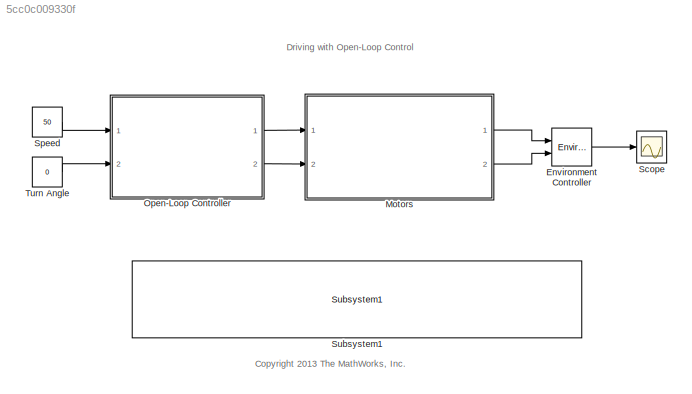
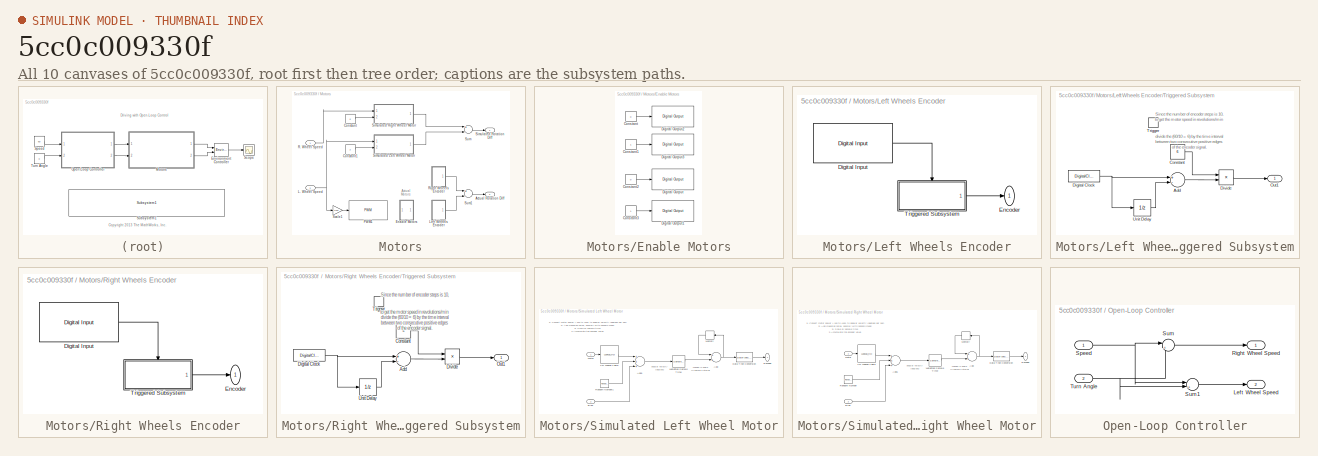
[diagram: thumbnail index - all 10 canvases of the model, root first then tree order]
MODEL slx_5cc0c009330f
KIND model
BLOCK [Reference] Environment Controller  REF=simulink/Signal
Routing/Environment
Controller
  Ports = [2, 1]
  SourceBlock = simulink/Signal\nRouting/Environment\nController
  SourceType = Environment Controller
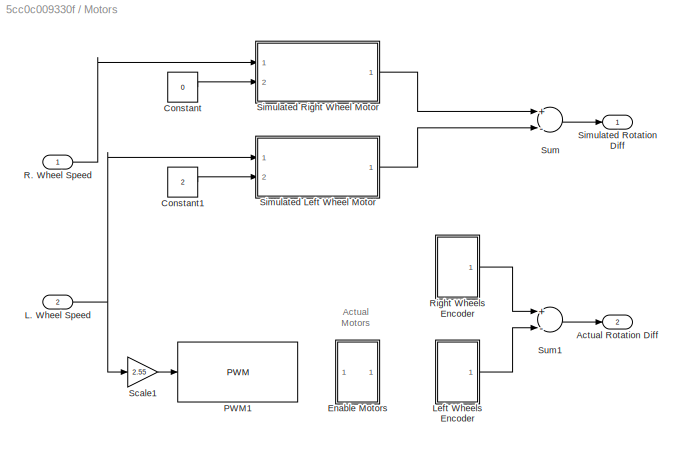
BLOCK [SubSystem] Motors
  Ports = [2, 2]
  RequestExecContextInheritance = off
  VariantControl = DoSim
BLOCK [Outport] Motors/Actual Rotation Diff
  IconDisplay = Port number
  Port = 2
BLOCK [Constant] Motors/Constant
  OutDataTypeStr = single
  Value = 0
BLOCK [Constant] Motors/Constant1
  OutDataTypeStr = single
  Value = 2
BLOCK [SubSystem] Motors/Enable Motors
  Ports = []
  RequestExecContextInheritance = off
BLOCK [Constant] Motors/Enable Motors/Constant
  OutDataTypeStr = boolean
  Value = 0
BLOCK [Constant] Motors/Enable Motors/Constant1
  OutDataTypeStr = boolean
BLOCK [Constant] Motors/Enable Motors/Constant2
  OutDataTypeStr = boolean
  Value = 0
BLOCK [Constant] Motors/Enable Motors/Constant3
  OutDataTypeStr = boolean
BLOCK [Reference] Motors/Enable Motors/Digital Output  REF=arduinolib/Digital Output
  Ports = [1]
  SourceBlock = arduinolib/Digital Output
  SourceType = Arduino Digital Output
  blockPlatform = arduino
  pinNumber = 2
BLOCK [Reference] Motors/Enable Motors/Digital Output1  REF=arduinolib/Digital Output
  Ports = [1]
  SourceBlock = arduinolib/Digital Output
  SourceType = Arduino Digital Output
  blockPlatform = arduino
  pinNumber = 3
BLOCK [Reference] Motors/Enable Motors/Digital Output2  REF=arduinolib/Digital Output
  Ports = [1]
  SourceBlock = arduinolib/Digital Output
  SourceType = Arduino Digital Output
  blockPlatform = arduino
  pinNumber = 4
BLOCK [Reference] Motors/Enable Motors/Digital Output3  REF=arduinolib/Digital Output
  Ports = [1]
  SourceBlock = arduinolib/Digital Output
  SourceType = Arduino Digital Output
  blockPlatform = arduino
  pinNumber = 5
BLOCK [Inport] Motors/L. Wheel Speed
  IconDisplay = Port number
  Port = 2
BLOCK [SubSystem] Motors/Left Wheels Encoder
  Ports = [0, 1]
  RequestExecContextInheritance = off
BLOCK [Reference] Motors/Left Wheels Encoder/Digital Input  REF=arduinolib/Digital Input
  Ports = [0, 1]
  SourceBlock = arduinolib/Digital Input
  SourceType = Arduino Digital Input
  blockPlatform = arduino
  pinNumber = 9
  sampleTime = 0.001
BLOCK [Outport] Motors/Left Wheels Encoder/Encoder
  IconDisplay = Port number
BLOCK [SubSystem] Motors/Left Wheels Encoder/Triggered Subsystem
  Ports = [0, 1, 0, 1]
  RequestExecContextInheritance = off
  TreatAsAtomicUnit = on
BLOCK [Sum] Motors/Left Wheels Encoder/Triggered Subsystem/Add
  InputSameDT = off
  Inputs = +-
  OutDataTypeStr = Inherit: Inherit via internal rule
  Ports = [2, 1]
  SaturateOnIntegerOverflow = off
BLOCK [Constant] Motors/Left Wheels Encoder/Triggered Subsystem/Constant
  Value = 6
BLOCK [DigitalClock] Motors/Left Wheels Encoder/Triggered Subsystem/Digital Clock
  SampleTime = -1
BLOCK [Product] Motors/Left Wheels Encoder/Triggered Subsystem/Divide
  InputSameDT = off
  Inputs = */
  OutDataTypeStr = int32
  Ports = [2, 1]
  RndMeth = Floor
  SaturateOnIntegerOverflow = off
BLOCK [Outport] Motors/Left Wheels Encoder/Triggered Subsystem/Out1
  IconDisplay = Port number
BLOCK [TriggerPort] Motors/Left Wheels Encoder/Triggered Subsystem/Trigger
  Ports = []
  StatesWhenEnabling = held
BLOCK [UnitDelay] Motors/Left Wheels Encoder/Triggered Subsystem/Unit Delay
  InputProcessing = Elements as channels (sample based)
  SampleTime = -1
BLOCK [Reference] Motors/PWM1  REF=arduinolib/PWM
  Ports = [1]
  SourceBlock = arduinolib/PWM
  SourceType = Arduino PWM
  blockPlatform = arduino
  pinNumber = 11
BLOCK [Inport] Motors/R. Wheel Speed
  IconDisplay = Port number
BLOCK [SubSystem] Motors/Right Wheels Encoder
  Ports = [0, 1]
  RequestExecContextInheritance = off
BLOCK [Reference] Motors/Right Wheels Encoder/Digital Input  REF=arduinolib/Digital Input
  Ports = [0, 1]
  SourceBlock = arduinolib/Digital Input
  SourceType = Arduino Digital Input
  blockPlatform = arduino
  pinNumber = 8
  sampleTime = 0.001
BLOCK [Outport] Motors/Right Wheels Encoder/Encoder
  IconDisplay = Port number
BLOCK [SubSystem] Motors/Right Wheels Encoder/Triggered Subsystem
  Ports = [0, 1, 0, 1]
  RequestExecContextInheritance = off
  TreatAsAtomicUnit = on
BLOCK [Sum] Motors/Right Wheels Encoder/Triggered Subsystem/Add
  InputSameDT = off
  Inputs = +-
  OutDataTypeStr = Inherit: Inherit via internal rule
  Ports = [2, 1]
  SaturateOnIntegerOverflow = off
BLOCK [Constant] Motors/Right Wheels Encoder/Triggered Subsystem/Constant
  Value = 6
BLOCK [DigitalClock] Motors/Right Wheels Encoder/Triggered Subsystem/Digital Clock
  SampleTime = -1
BLOCK [Product] Motors/Right Wheels Encoder/Triggered Subsystem/Divide
  InputSameDT = off
  Inputs = */
  OutDataTypeStr = int32
  Ports = [2, 1]
  RndMeth = Floor
  SaturateOnIntegerOverflow = off
BLOCK [Outport] Motors/Right Wheels Encoder/Triggered Subsystem/Out1
  IconDisplay = Port number
BLOCK [TriggerPort] Motors/Right Wheels Encoder/Triggered Subsystem/Trigger
  Ports = []
  StatesWhenEnabling = held
BLOCK [UnitDelay] Motors/Right Wheels Encoder/Triggered Subsystem/Unit Delay
  InputProcessing = Elements as channels (sample based)
  SampleTime = -1
BLOCK [Gain] Motors/Scale1
  Gain = 2.55
  OutDataTypeStr = Inherit: Inherit via internal rule
  ParamDataTypeStr = Inherit: Inherit via internal rule
  SaturateOnIntegerOverflow = off
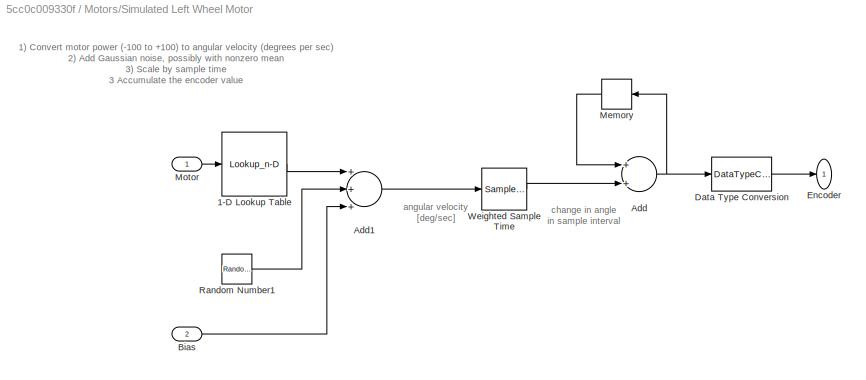
BLOCK [SubSystem] Motors/Simulated Left Wheel Motor
  Ports = [2, 1]
  RequestExecContextInheritance = off
BLOCK [Lookup_n-D] Motors/Simulated Left Wheel Motor/1-D Lookup Table
  BreakpointsForDimension1 = [-100 0 100]
  ExtrapMethod = Clip
  NumberOfTableDimensions = 1
  Ports = [1, 1]
  RndMeth = Simplest
  Table = [-360 0 360]
  UseLastTableValue = on
BLOCK [Sum] Motors/Simulated Left Wheel Motor/Add
  AccumDataTypeStr = Inherit: Same as first input
  InputSameDT = off
  Ports = [2, 1]
  SaturateOnIntegerOverflow = off
BLOCK [Sum] Motors/Simulated Left Wheel Motor/Add1
  InputSameDT = off
  Inputs = +++
  OutDataTypeStr = single
  Ports = [3, 1]
  SaturateOnIntegerOverflow = off
BLOCK [Inport] Motors/Simulated Left Wheel Motor/Bias
  IconDisplay = Port number
  Port = 2
BLOCK [DataTypeConversion] Motors/Simulated Left Wheel Motor/Data Type Conversion
  OutDataTypeStr = int32
  RndMeth = Floor
  SaturateOnIntegerOverflow = off
BLOCK [Outport] Motors/Simulated Left Wheel Motor/Encoder
  IconDisplay = Port number
BLOCK [Memory] Motors/Simulated Left Wheel Motor/Memory
  InheritSampleTime = on
  LinearizeAsDelay = on
BLOCK [Inport] Motors/Simulated Left Wheel Motor/Motor
  IconDisplay = Port number
BLOCK [RandomNumber] Motors/Simulated Left Wheel Motor/Random Number1
  Seed = randi(1000)
  Variance = 5
BLOCK [SampleTimeMath] Motors/Simulated Left Wheel Motor/Weighted Sample Time
  TsampMathOp = *
BLOCK [SubSystem] Motors/Simulated Right Wheel Motor
  Ports = [2, 1]
  RequestExecContextInheritance = off
BLOCK [Lookup_n-D] Motors/Simulated Right Wheel Motor/1-D Lookup Table
  BreakpointsForDimension1 = [-100 0 100]
  ExtrapMethod = Clip
  NumberOfTableDimensions = 1
  Ports = [1, 1]
  RndMeth = Simplest
  Table = [-360 0 360]
  UseLastTableValue = on
BLOCK [Sum] Motors/Simulated Right Wheel Motor/Add
  AccumDataTypeStr = single
  InputSameDT = off
  OutDataTypeStr = single
  Ports = [2, 1]
  SaturateOnIntegerOverflow = off
BLOCK [Sum] Motors/Simulated Right Wheel Motor/Add1
  InputSameDT = off
  Inputs = +++
  OutDataTypeStr = single
  Ports = [3, 1]
  SaturateOnIntegerOverflow = off
BLOCK [Inport] Motors/Simulated Right Wheel Motor/Bias
  IconDisplay = Port number
  Port = 2
BLOCK [DataTypeConversion] Motors/Simulated Right Wheel Motor/Data Type Conversion
  OutDataTypeStr = int32
  RndMeth = Floor
  SaturateOnIntegerOverflow = off
BLOCK [Outport] Motors/Simulated Right Wheel Motor/Encoder
  IconDisplay = Port number
BLOCK [Memory] Motors/Simulated Right Wheel Motor/Memory
  InheritSampleTime = on
  LinearizeAsDelay = on
BLOCK [Inport] Motors/Simulated Right Wheel Motor/Motor
  IconDisplay = Port number
BLOCK [RandomNumber] Motors/Simulated Right Wheel Motor/Random Number
  Seed = randi(1000)
  Variance = 5
BLOCK [SampleTimeMath] Motors/Simulated Right Wheel Motor/Weighted Sample Time
  TsampMathOp = *
BLOCK [Outport] Motors/Simulated Rotation Diff
  IconDisplay = Port number
BLOCK [Sum] Motors/Sum
  InputSameDT = off
  Inputs = +-
  Ports = [2, 1]
  SaturateOnIntegerOverflow = off
BLOCK [Sum] Motors/Sum1
  InputSameDT = off
  Inputs = +-
  Ports = [2, 1]
  SaturateOnIntegerOverflow = off
BLOCK [SubSystem] Open-Loop Controller
  Ports = [2, 2]
  RequestExecContextInheritance = off
BLOCK [Outport] Open-Loop Controller/Left Wheel Speed
  IconDisplay = Port number
  Port = 2
BLOCK [Outport] Open-Loop Controller/Right Wheel Speed
  IconDisplay = Port number
BLOCK [Inport] Open-Loop Controller/Speed
  IconDisplay = Port number
BLOCK [Sum] Open-Loop Controller/Sum
  IconShape = round
  InputSameDT = off
  Inputs = |++
  Ports = [2, 1]
  SaturateOnIntegerOverflow = off
BLOCK [Sum] Open-Loop Controller/Sum1
  IconShape = round
  InputSameDT = off
  Inputs = |+-
  Ports = [2, 1]
  SaturateOnIntegerOverflow = off
BLOCK [Inport] Open-Loop Controller/Turn Angle
  IconDisplay = Port number
  Port = 2
BLOCK [Scope] Scope
  DataFormat = StructureWithTime
  Floating = off
  LimitDataPoints = off
  NumInputPorts = 1
  Ports = [1]
  ShowLegends = off
  TimeRange = 120
  YMax = 0
  YMin = -250
BLOCK [Constant] Speed
  OutDataTypeStr = single
  OutMax = 100
  OutMin = 0
  SampleTime = 0.001
  Value = 50
BLOCK [Reference] Subsystem1  REF=realtime_examples_misc/Subsystem1
  FunctionWithSeparateData = off
  GeneratePreprocessorConditionals = off
  Ports = []
  ShowPortLabels = FromPortIcon
  SourceBlock = realtime_examples_misc/Subsystem1
  SystemSampleTime = -1
BLOCK [Constant] Turn Angle
  OutDataTypeStr = single
  OutMax = 50
  OutMin = -50
  SampleTime = 0.001
  Value = 0
ANNOTATION (root): <copyright redacted>
ANNOTATION (root): Driving with Open-Loop Control
ANNOTATION Motors: Actual Motors
ANNOTATION Motors/Left Wheels Encoder/Triggered Subsystem: Since the number of encoder steps is 10, to get the motor speed in revolutions/min divide the (60/10 = 6) by the time interval between two consecutive positive edges of the encoder signal.
ANNOTATION Motors/Right Wheels Encoder/Triggered Subsystem: Since the number of encoder steps is 10, to get the motor speed in revolutions/min divide the (60/10 = 6) by the time interval between two consecutive positive edges of the encoder signal.
ANNOTATION Motors/Simulated Left Wheel Motor: 1) Convert motor power (-100 to +100) to angular velocity (degrees per sec) 2) Add Gaussian noise, possibly with nonzero mean 3) Scale by sample time 3 Accumulate the encoder value
ANNOTATION Motors/Simulated Left Wheel Motor: angular velocity [deg/sec]
ANNOTATION Motors/Simulated Left Wheel Motor: change in angle in sample interval
ANNOTATION Motors/Simulated Right Wheel Motor: 1) Convert motor power (-100 to +100) to angular velocity (degrees per sec) 2) Add Gaussian noise, possibly with nonzero mean 3) Scale by sample time 3 Accumulate the encoder value
ANNOTATION Motors/Simulated Right Wheel Motor: angular velocity [deg/sec]
ANNOTATION Motors/Simulated Right Wheel Motor: change in angle in sample interval
LINE Environment Controller:1 -> Scope:1
LINE Motors/Constant1:1 -> Motors/Simulated Left Wheel Motor:2
LINE Motors/Constant:1 -> Motors/Simulated Right Wheel Motor:2
LINE Motors/Enable Motors/Constant1:1 -> Motors/Enable Motors/Digital Output3:1
LINE Motors/Enable Motors/Constant2:1 -> Motors/Enable Motors/Digital Output:1
LINE Motors/Enable Motors/Constant3:1 -> Motors/Enable Motors/Digital Output1:1
LINE Motors/Enable Motors/Constant:1 -> Motors/Enable Motors/Digital Output2:1
NET Motors/L. Wheel Speed:1 -> Motors/Scale1:1, Motors/Simulated Left Wheel Motor:1
LINE Motors/Left Wheels Encoder/Digital Input:1 -> Motors/Left Wheels Encoder/Triggered Subsystem:trigger
LINE Motors/Left Wheels Encoder/Triggered Subsystem/Add:1 -> Motors/Left Wheels Encoder/Triggered Subsystem/Divide:2
LINE Motors/Left Wheels Encoder/Triggered Subsystem/Constant:1 -> Motors/Left Wheels Encoder/Triggered Subsystem/Divide:1
NET Motors/Left Wheels Encoder/Triggered Subsystem/Digital Clock:1 -> Motors/Left Wheels Encoder/Triggered Subsystem/Add:1, Motors/Left Wheels Encoder/Triggered Subsystem/Unit Delay:1
LINE Motors/Left Wheels Encoder/Triggered Subsystem/Divide:1 -> Motors/Left Wheels Encoder/Triggered Subsystem/Out1:1
LINE Motors/Left Wheels Encoder/Triggered Subsystem/Unit Delay:1 -> Motors/Left Wheels Encoder/Triggered Subsystem/Add:2
LINE Motors/Left Wheels Encoder/Triggered Subsystem:1 -> Motors/Left Wheels Encoder/Encoder:1
LINE Motors/Left Wheels Encoder:1 -> Motors/Sum1:2
LINE Motors/R. Wheel Speed:1 -> Motors/Simulated Right Wheel Motor:1
LINE Motors/Right Wheels Encoder/Digital Input:1 -> Motors/Right Wheels Encoder/Triggered Subsystem:trigger
LINE Motors/Right Wheels Encoder/Triggered Subsystem/Add:1 -> Motors/Right Wheels Encoder/Triggered Subsystem/Divide:2
LINE Motors/Right Wheels Encoder/Triggered Subsystem/Constant:1 -> Motors/Right Wheels Encoder/Triggered Subsystem/Divide:1
NET Motors/Right Wheels Encoder/Triggered Subsystem/Digital Clock:1 -> Motors/Right Wheels Encoder/Triggered Subsystem/Add:1, Motors/Right Wheels Encoder/Triggered Subsystem/Unit Delay:1
LINE Motors/Right Wheels Encoder/Triggered Subsystem/Divide:1 -> Motors/Right Wheels Encoder/Triggered Subsystem/Out1:1
LINE Motors/Right Wheels Encoder/Triggered Subsystem/Unit Delay:1 -> Motors/Right Wheels Encoder/Triggered Subsystem/Add:2
LINE Motors/Right Wheels Encoder/Triggered Subsystem:1 -> Motors/Right Wheels Encoder/Encoder:1
LINE Motors/Right Wheels Encoder:1 -> Motors/Sum1:1
LINE Motors/Scale1:1 -> Motors/PWM1:1
LINE Motors/Simulated Left Wheel Motor/1-D Lookup Table:1 -> Motors/Simulated Left Wheel Motor/Add1:1
LINE Motors/Simulated Left Wheel Motor/Add1:1 -> Motors/Simulated Left Wheel Motor/Weighted Sample Time:1
NET Motors/Simulated Left Wheel Motor/Add:1 -> Motors/Simulated Left Wheel Motor/Data Type Conversion:1, Motors/Simulated Left Wheel Motor/Memory:1
LINE Motors/Simulated Left Wheel Motor/Bias:1 -> Motors/Simulated Left Wheel Motor/Add1:3
LINE Motors/Simulated Left Wheel Motor/Data Type Conversion:1 -> Motors/Simulated Left Wheel Motor/Encoder:1
LINE Motors/Simulated Left Wheel Motor/Memory:1 -> Motors/Simulated Left Wheel Motor/Add:1
LINE Motors/Simulated Left Wheel Motor/Motor:1 -> Motors/Simulated Left Wheel Motor/1-D Lookup Table:1
LINE Motors/Simulated Left Wheel Motor/Random Number1:1 -> Motors/Simulated Left Wheel Motor/Add1:2
LINE Motors/Simulated Left Wheel Motor/Weighted Sample Time:1 -> Motors/Simulated Left Wheel Motor/Add:2
LINE Motors/Simulated Left Wheel Motor:1 -> Motors/Sum:2
LINE Motors/Simulated Right Wheel Motor/1-D Lookup Table:1 -> Motors/Simulated Right Wheel Motor/Add1:1
LINE Motors/Simulated Right Wheel Motor/Add1:1 -> Motors/Simulated Right Wheel Motor/Weighted Sample Time:1
NET Motors/Simulated Right Wheel Motor/Add:1 -> Motors/Simulated Right Wheel Motor/Data Type Conversion:1, Motors/Simulated Right Wheel Motor/Memory:1
LINE Motors/Simulated Right Wheel Motor/Bias:1 -> Motors/Simulated Right Wheel Motor/Add1:3
LINE Motors/Simulated Right Wheel Motor/Data Type Conversion:1 -> Motors/Simulated Right Wheel Motor/Encoder:1
LINE Motors/Simulated Right Wheel Motor/Memory:1 -> Motors/Simulated Right Wheel Motor/Add:1
LINE Motors/Simulated Right Wheel Motor/Motor:1 -> Motors/Simulated Right Wheel Motor/1-D Lookup Table:1
LINE Motors/Simulated Right Wheel Motor/Random Number:1 -> Motors/Simulated Right Wheel Motor/Add1:2
LINE Motors/Simulated Right Wheel Motor/Weighted Sample Time:1 -> Motors/Simulated Right Wheel Motor/Add:2
LINE Motors/Simulated Right Wheel Motor:1 -> Motors/Sum:1
LINE Motors/Sum1:1 -> Motors/Actual Rotation Diff:1
LINE Motors/Sum:1 -> Motors/Simulated Rotation Diff:1
LINE Motors:1 -> Environment Controller:1
LINE Motors:2 -> Environment Controller:2
NET Open-Loop Controller/Speed:1 -> Open-Loop Controller/Sum1:1, Open-Loop Controller/Sum:1
LINE Open-Loop Controller/Sum1:1 -> Open-Loop Controller/Left Wheel Speed:1
LINE Open-Loop Controller/Sum:1 -> Open-Loop Controller/Right Wheel Speed:1
NET Open-Loop Controller/Turn Angle:1 -> Open-Loop Controller/Sum1:2, Open-Loop Controller/Sum:2
LINE Open-Loop Controller:1 -> Motors:1
LINE Open-Loop Controller:2 -> Motors:2
LINE Speed:1 -> Open-Loop Controller:1
LINE Turn Angle:1 -> Open-Loop Controller:2
note: NET lines group one-source signal fan-out (src -> all destinations, sorted); 1:1 wires keep LINE
